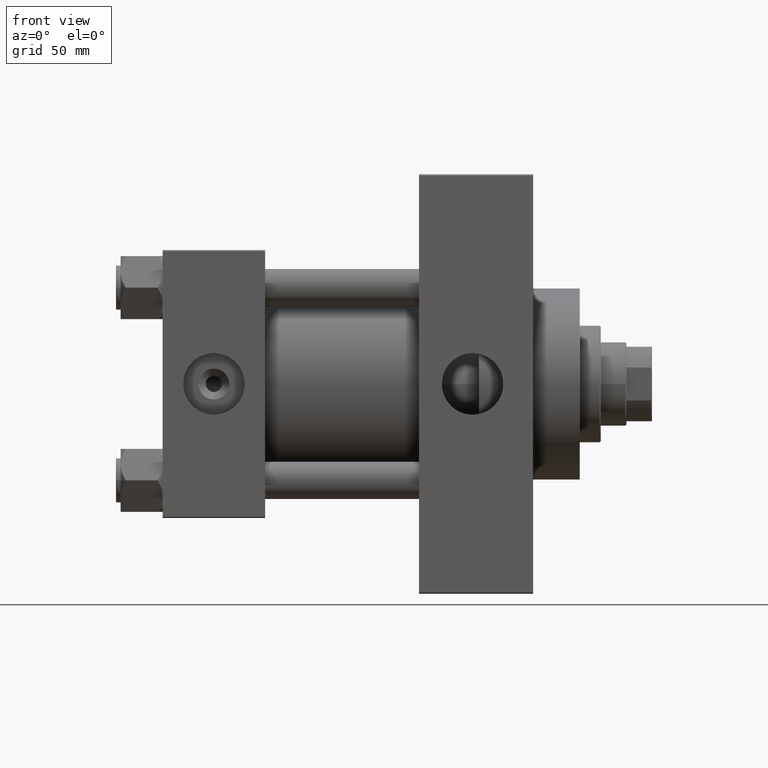
[diagram: clean part render]
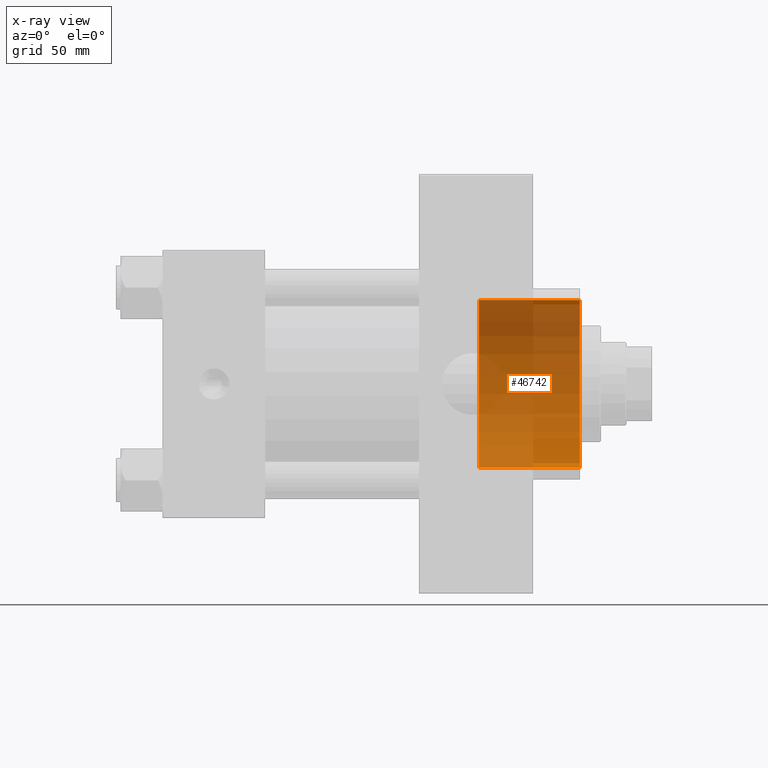
[diagram: x-ray — body ghosted, one internal face saturated and labeled with its STEP entity id]
A machine part, front view, then the same camera in x-ray: the body is ghosted and one INTERNAL B-rep face — a face not visible from any outside direction — is saturated and labeled: STEP entity #46742.
In plain terms, the highlighted cylindrical surface (partial cylindrical patch) has radius 36 mm, axis along (1, 0, 0).
Its self-contained STEP definition (entity closure, byte-faithful):
#1172 = CARTESIAN_POINT ( 'NONE',  ( 135.7400000000000091, 0.000000000000000000, 0.000000000000000000 ) ) ;
#1365 = CARTESIAN_POINT ( 'NONE',  ( 179.0000000000000000, 0.000000000000000000, -36.00000000000000000 ) ) ;
#1933 = VERTEX_POINT ( 'NONE', #40050 ) ;
#2670 = DIRECTION ( 'NONE',  ( 1.000000000000000000, 0.000000000000000000, 0.000000000000000000 ) ) ;
#2921 = CYLINDRICAL_SURFACE ( 'NONE', #5641, 36.00000000000000000 ) ;
#3140 = DIRECTION ( 'NONE',  ( 0.000000000000000000, 0.000000000000000000, -1.000000000000000000 ) ) ;
#4333 = EDGE_CURVE ( 'NONE', #43954, #9395, #44385, .T. ) ;
#5641 = AXIS2_PLACEMENT_3D ( 'NONE', #33061, #21508, #25124 ) ;
#6688 = VERTEX_POINT ( 'NONE', #1365 ) ;
#6793 = DIRECTION ( 'NONE',  ( 1.000000000000000000, -0.000000000000000000, -0.000000000000000000 ) ) ;
#7710 = ORIENTED_EDGE ( 'NONE', *, *, #44808, .T. ) ;
#9395 = VERTEX_POINT ( 'NONE', #42849 ) ;
#16488 = AXIS2_PLACEMENT_3D ( 'NONE', #1172, #45764, #42385 ) ;
#17500 = LINE ( 'NONE', #28595, #25653 ) ;
#18828 = CIRCLE ( 'NONE', #16488, 36.00000000000000000 ) ;
#20435 = DIRECTION ( 'NONE',  ( 1.000000000000000000, -0.000000000000000000, -0.000000000000000000 ) ) ;
#21508 = DIRECTION ( 'NONE',  ( 1.000000000000000000, -0.000000000000000000, -0.000000000000000000 ) ) ;
#23887 = ORIENTED_EDGE ( 'NONE', *, *, #27673, .F. ) ;
#25124 = DIRECTION ( 'NONE',  ( 0.000000000000000000, 0.000000000000000000, -1.000000000000000000 ) ) ;
#25653 = VECTOR ( 'NONE', #20435, 1000.000000000000000 ) ;
#27673 = EDGE_CURVE ( 'NONE', #1933, #43954, #18828, .T. ) ;
#28595 = CARTESIAN_POINT ( 'NONE',  ( 135.7400000000000091, 0.000000000000000000, -36.00000000000000000 ) ) ;
#33061 = CARTESIAN_POINT ( 'NONE',  ( 135.7400000000000091, 0.000000000000000000, 0.000000000000000000 ) ) ;
#33418 = AXIS2_PLACEMENT_3D ( 'NONE', #36418, #2670, #3140 ) ;
#33649 = CARTESIAN_POINT ( 'NONE',  ( 135.7400000000000091, 4.408728476930470856E-15, 36.00000000000000000 ) ) ;
#36418 = CARTESIAN_POINT ( 'NONE',  ( 179.0000000000000000, 0.000000000000000000, 0.000000000000000000 ) ) ;
#39811 = CARTESIAN_POINT ( 'NONE',  ( 135.7400000000000091, 4.408728476930470856E-15, 36.00000000000000000 ) ) ;
#40050 = CARTESIAN_POINT ( 'NONE',  ( 135.7400000000000091, 0.000000000000000000, -36.00000000000000000 ) ) ;
#40514 = FACE_OUTER_BOUND ( 'NONE', #42876, .T. ) ;
#42385 = DIRECTION ( 'NONE',  ( 0.000000000000000000, 0.000000000000000000, -1.000000000000000000 ) ) ;
#42643 = CIRCLE ( 'NONE', #33418, 36.00000000000000000 ) ;
#42849 = CARTESIAN_POINT ( 'NONE',  ( 179.0000000000000000, 4.408728476930470856E-15, 36.00000000000000000 ) ) ;
#42876 = EDGE_LOOP ( 'NONE', ( #45094, #23887, #43429, #7710 ) ) ;
#43429 = ORIENTED_EDGE ( 'NONE', *, *, #45346, .T. ) ;
#43954 = VERTEX_POINT ( 'NONE', #33649 ) ;
#44385 = LINE ( 'NONE', #39811, #47707 ) ;
#44808 = EDGE_CURVE ( 'NONE', #6688, #9395, #42643, .T. ) ;
#45094 = ORIENTED_EDGE ( 'NONE', *, *, #4333, .F. ) ;
#45346 = EDGE_CURVE ( 'NONE', #1933, #6688, #17500, .T. ) ;
#45764 = DIRECTION ( 'NONE',  ( 1.000000000000000000, 0.000000000000000000, 0.000000000000000000 ) ) ;
#46742 = ADVANCED_FACE ( 'NONE', ( #40514 ), #2921, .F. ) ;
#47707 = VECTOR ( 'NONE', #6793, 1000.000000000000000 ) ;